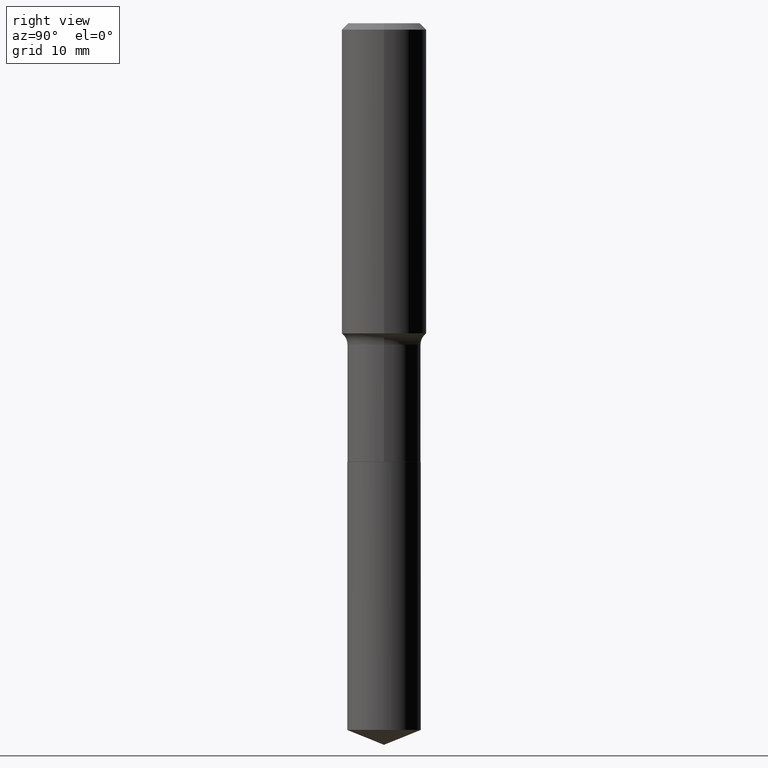
[diagram: clean part render]
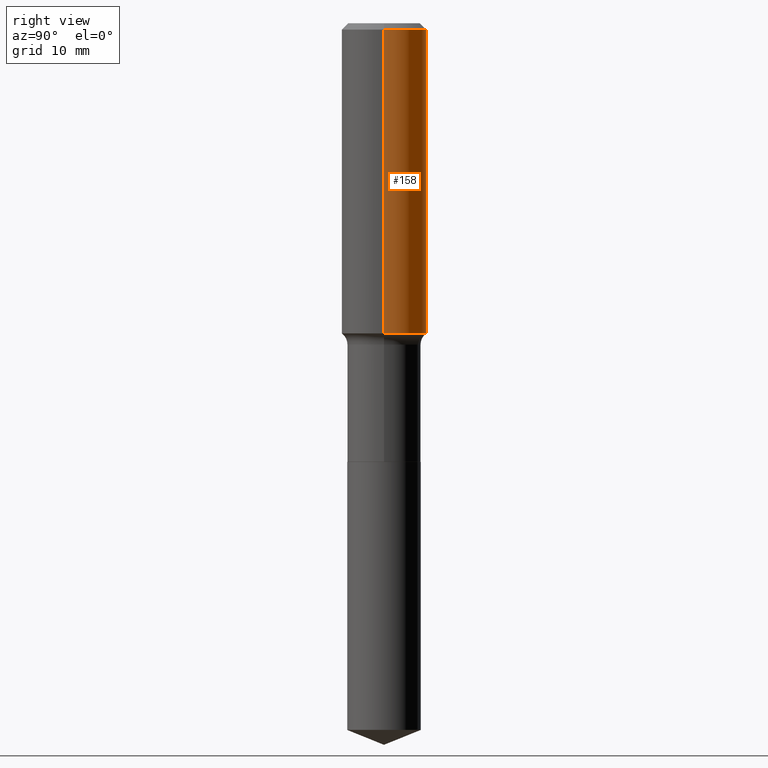
[diagram: same view with one face highlighted and labeled with its STEP entity id]
A machine part, right view. The second image highlights one B-rep face of the part: STEP entity #158.
In plain terms, the highlighted cylindrical surface (partial cylindrical patch) has radius 5.9995 mm, axis along (-0, 0, 1).
Its self-contained STEP definition (entity closure, byte-faithful):
#12 = CYLINDRICAL_SURFACE ( 'NONE', #24, 0.2362000000000001043 ) ;
#21 = EDGE_CURVE ( 'NONE', #171, #365, #413, .T. ) ;
#24 = AXIS2_PLACEMENT_3D ( 'NONE', #469, #313, #355 ) ;
#31 = ORIENTED_EDGE ( 'NONE', *, *, #21, .F. ) ;
#48 = CARTESIAN_POINT ( 'NONE',  ( -0.2362000000000001043, 1.678301941865357380E-15, -1.161852468318209317E-29 ) ) ;
#49 = FACE_OUTER_BOUND ( 'NONE', #399, .T. ) ;
#63 = VECTOR ( 'NONE', #292, 39.37007874015748143 ) ;
#79 = CARTESIAN_POINT ( 'NONE',  ( 0.2362000000000002153, -7.676766387154458967E-15, -1.726313280162641517 ) ) ;
#106 = AXIS2_PLACEMENT_3D ( 'NONE', #267, #393, #200 ) ;
#158 = ADVANCED_FACE ( 'NONE', ( #49 ), #12, .T. ) ;
#164 = VERTEX_POINT ( 'NONE', #315 ) ;
#171 = VERTEX_POINT ( 'NONE', #79 ) ;
#182 = CARTESIAN_POINT ( 'NONE',  ( 0.2362000000000001043, -1.649375784469496920E-15, 1.151752954443000508E-29 ) ) ;
#200 = DIRECTION ( 'NONE',  ( 1.000000000000000000, -6.982962677686266711E-15, 0.000000000000000000 ) ) ;
#222 = EDGE_CURVE ( 'NONE', #365, #420, #347, .T. ) ;
#267 = CARTESIAN_POINT ( 'NONE',  ( 4.221645276340882114E-29, -6.027390602684960864E-15, -1.726313280162641517 ) ) ;
#292 = DIRECTION ( 'NONE',  ( -2.445468806185136877E-29, 3.491481338843145188E-15, 1.000000000000000000 ) ) ;
#299 = CARTESIAN_POINT ( 'NONE',  ( 8.664295980313995239E-31, -1.237031838352134572E-16, -0.03543000000000023214 ) ) ;
#307 = CIRCLE ( 'NONE', #106, 0.2362000000000002153 ) ;
#313 = DIRECTION ( 'NONE',  ( -2.445468806185136597E-29, 3.491481338843145583E-15, 1.000000000000000000 ) ) ;
#315 = CARTESIAN_POINT ( 'NONE',  ( -0.2362000000000002153, -4.349088660819602892E-15, -1.726313280162641517 ) ) ;
#326 = EDGE_CURVE ( 'NONE', #164, #420, #391, .T. ) ;
#347 = CIRCLE ( 'NONE', #397, 0.2361999999999999933 ) ;
#353 = DIRECTION ( 'NONE',  ( -2.445468806185136877E-29, 3.491481338843145188E-15, 1.000000000000000000 ) ) ;
#355 = DIRECTION ( 'NONE',  ( 1.000000000000000000, -6.982962677686266711E-15, 4.876176775795935793E-29 ) ) ;
#360 = ORIENTED_EDGE ( 'NONE', *, *, #222, .F. ) ;
#365 = VERTEX_POINT ( 'NONE', #416 ) ;
#389 = EDGE_CURVE ( 'NONE', #171, #164, #307, .T. ) ;
#390 = VECTOR ( 'NONE', #353, 39.37007874015748143 ) ;
#391 = LINE ( 'NONE', #48, #390 ) ;
#393 = DIRECTION ( 'NONE',  ( -2.445468806185136597E-29, 3.491481338843145583E-15, 1.000000000000000000 ) ) ;
#396 = ORIENTED_EDGE ( 'NONE', *, *, #389, .T. ) ;
#397 = AXIS2_PLACEMENT_3D ( 'NONE', #299, #463, #448 ) ;
#399 = EDGE_LOOP ( 'NONE', ( #396, #451, #360, #31 ) ) ;
#413 = LINE ( 'NONE', #182, #63 ) ;
#416 = CARTESIAN_POINT ( 'NONE',  ( 0.2361999999999999933, -1.773078968304709514E-15, -0.03543000000000023214 ) ) ;
#420 = VERTEX_POINT ( 'NONE', #439 ) ;
#439 = CARTESIAN_POINT ( 'NONE',  ( -0.2361999999999999933, -1.397244951394729645E-15, -0.03543000000000023214 ) ) ;
#448 = DIRECTION ( 'NONE',  ( 1.000000000000000000, -6.982962677686266711E-15, 0.000000000000000000 ) ) ;
#451 = ORIENTED_EDGE ( 'NONE', *, *, #326, .T. ) ;
#463 = DIRECTION ( 'NONE',  ( -2.445468806185136597E-29, 3.491481338843145583E-15, 1.000000000000000000 ) ) ;
#469 = CARTESIAN_POINT ( 'NONE',  ( 0.000000000000000000, 0.000000000000000000, 0.000000000000000000 ) ) ;